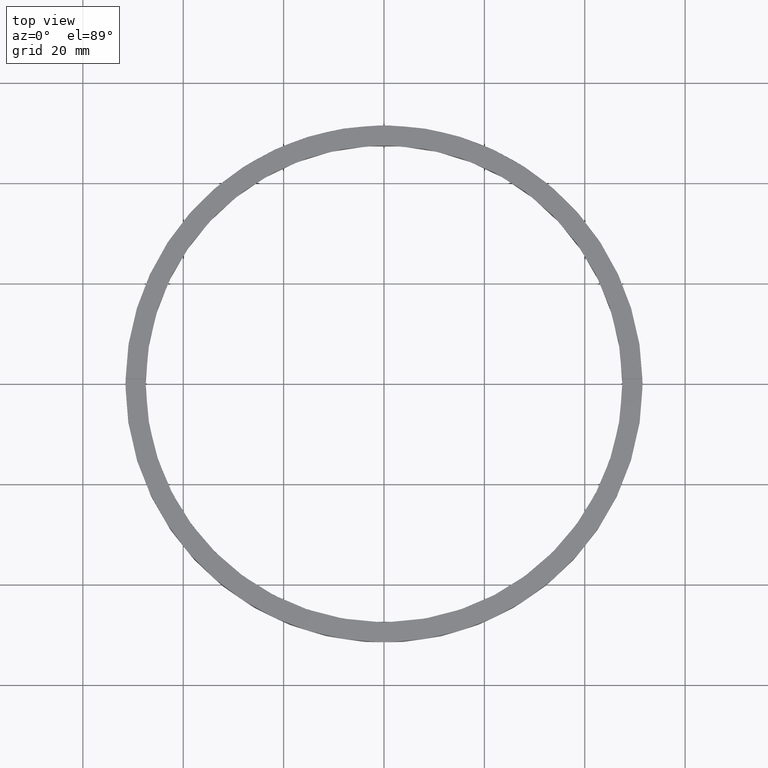
[diagram: clean part render]
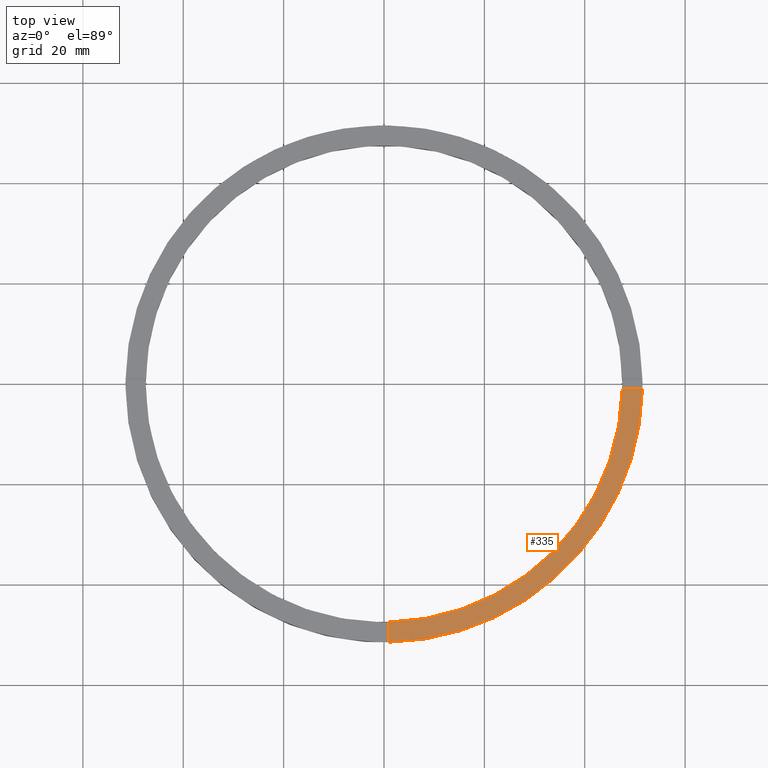
[diagram: same view with one face highlighted and labeled with its STEP entity id]
A machine part, top view. The second image highlights one B-rep face of the part: STEP entity #335.
In plain terms, the highlighted planar face has unit normal (0, 0, 1).
Its self-contained STEP definition (entity closure, byte-faithful):
#1 = CARTESIAN_POINT ( 'NONE',  ( 0.9999999999998423483, -41.50000000000017764, 5.000000000000000000 ) ) ;
#26 = ORIENTED_EDGE ( 'NONE', *, *, #53, .F. ) ;
#44 = VERTEX_POINT ( 'NONE', #303 ) ;
#52 = DIRECTION ( 'NONE',  ( -1.301042606982605074E-16, 1.000000000000000000, -0.000000000000000000 ) ) ;
#53 = EDGE_CURVE ( 'NONE', #413, #181, #411, .T. ) ;
#54 = CARTESIAN_POINT ( 'NONE',  ( 41.49999999999998579, -1.000000000000155431, 5.000000000000000000 ) ) ;
#73 = CARTESIAN_POINT ( 'NONE',  ( 0.000000000000000000, 0.000000000000000000, 5.000000000000000000 ) ) ;
#76 = DIRECTION ( 'NONE',  ( 0.000000000000000000, 0.000000000000000000, 1.000000000000000000 ) ) ;
#135 = EDGE_CURVE ( 'NONE', #44, #571, #464, .T. ) ;
#146 = AXIS2_PLACEMENT_3D ( 'NONE', #694, #76, #294 ) ;
#172 = DIRECTION ( 'NONE',  ( 1.000000000000000000, 6.505213034913025371E-17, 0.000000000000000000 ) ) ;
#179 = DIRECTION ( 'NONE',  ( 1.000000000000000000, 0.000000000000000000, -0.000000000000000000 ) ) ;
#181 = VERTEX_POINT ( 'NONE', #615 ) ;
#211 = AXIS2_PLACEMENT_3D ( 'NONE', #593, #723, #179 ) ;
#259 = VECTOR ( 'NONE', #52, 1000.000000000000000 ) ;
#294 = DIRECTION ( 'NONE',  ( 1.000000000000000000, 0.000000000000000000, 0.000000000000000000 ) ) ;
#300 = DIRECTION ( 'NONE',  ( 0.000000000000000000, 0.000000000000000000, 1.000000000000000000 ) ) ;
#302 = PLANE ( 'NONE',  #211 ) ;
#303 = CARTESIAN_POINT ( 'NONE',  ( 0.9999999999998436806, -51.49029034682169481, 5.000000000000000000 ) ) ;
#335 = ADVANCED_FACE ( 'NONE', ( #443 ), #302, .T. ) ;
#343 = DIRECTION ( 'NONE',  ( 1.000000000000000000, 0.000000000000000000, 0.000000000000000000 ) ) ;
#351 = AXIS2_PLACEMENT_3D ( 'NONE', #73, #300, #343 ) ;
#383 = ORIENTED_EDGE ( 'NONE', *, *, #676, .F. ) ;
#411 = CIRCLE ( 'NONE', #146, 47.50000000000000711 ) ;
#413 = VERTEX_POINT ( 'NONE', #678 ) ;
#432 = ORIENTED_EDGE ( 'NONE', *, *, #645, .F. ) ;
#443 = FACE_OUTER_BOUND ( 'NONE', #673, .T. ) ;
#464 = CIRCLE ( 'NONE', #351, 51.50000000000000000 ) ;
#523 = LINE ( 'NONE', #1, #259 ) ;
#571 = VERTEX_POINT ( 'NONE', #610 ) ;
#593 = CARTESIAN_POINT ( 'NONE',  ( 0.000000000000000000, 0.000000000000000000, 5.000000000000000000 ) ) ;
#610 = CARTESIAN_POINT ( 'NONE',  ( 51.49029034682169481, -1.000000000000154765, 5.000000000000000000 ) ) ;
#615 = CARTESIAN_POINT ( 'NONE',  ( 47.48947251760120736, -1.000000000000154987, 5.000000000000000000 ) ) ;
#645 = EDGE_CURVE ( 'NONE', #181, #571, #761, .T. ) ;
#673 = EDGE_LOOP ( 'NONE', ( #432, #26, #383, #698 ) ) ;
#676 = EDGE_CURVE ( 'NONE', #44, #413, #523, .T. ) ;
#678 = CARTESIAN_POINT ( 'NONE',  ( 0.9999999999998430145, -47.48947251760121446, 5.000000000000000000 ) ) ;
#694 = CARTESIAN_POINT ( 'NONE',  ( 0.000000000000000000, 0.000000000000000000, 5.000000000000000000 ) ) ;
#698 = ORIENTED_EDGE ( 'NONE', *, *, #135, .T. ) ;
#723 = DIRECTION ( 'NONE',  ( 0.000000000000000000, 0.000000000000000000, 1.000000000000000000 ) ) ;
#761 = LINE ( 'NONE', #54, #779 ) ;
#779 = VECTOR ( 'NONE', #172, 1000.000000000000000 ) ;